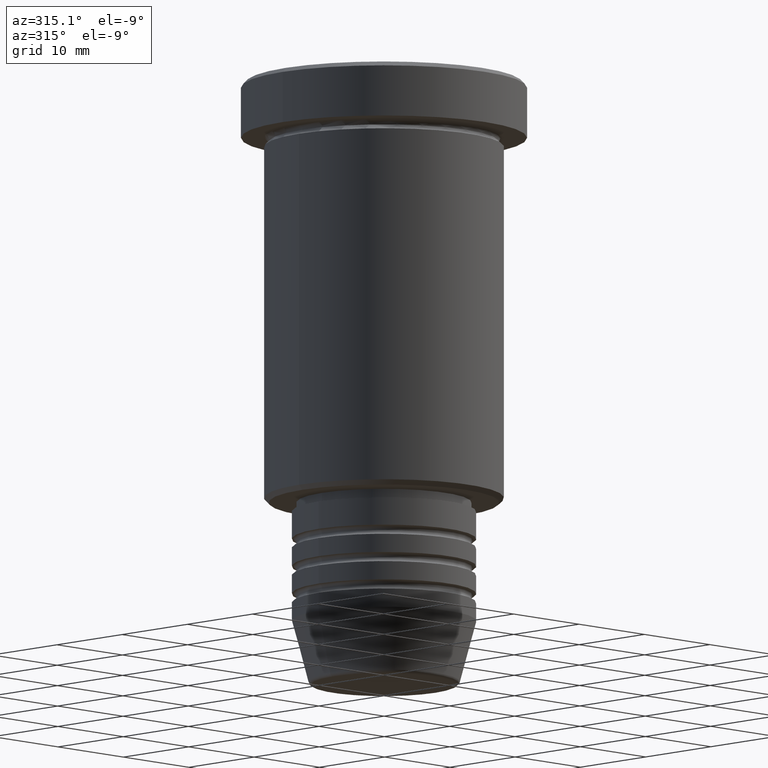
[diagram: clean part render]
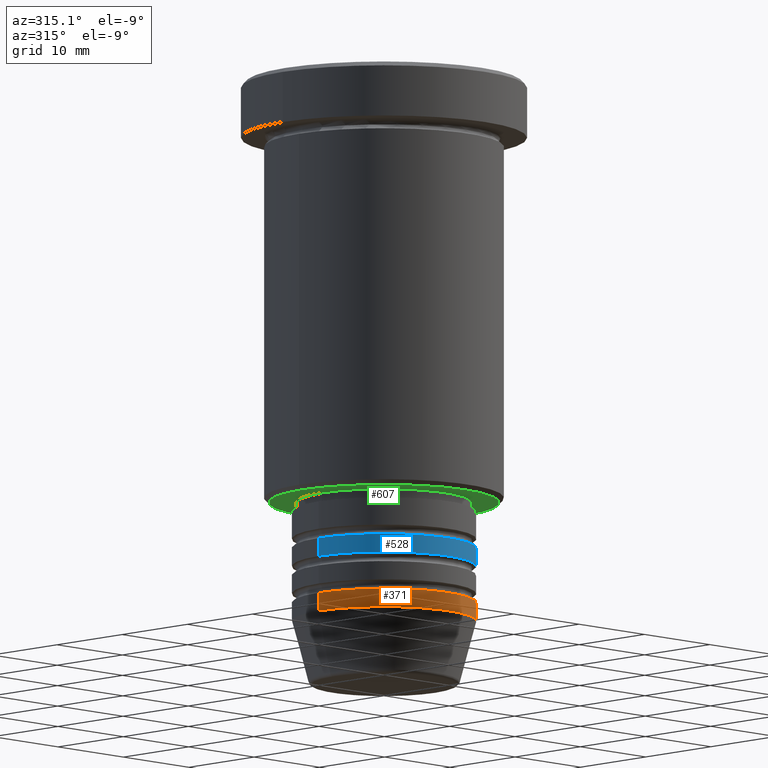
[diagram: same view with three faces highlighted in distinct colors, each labeled with its STEP entity id]
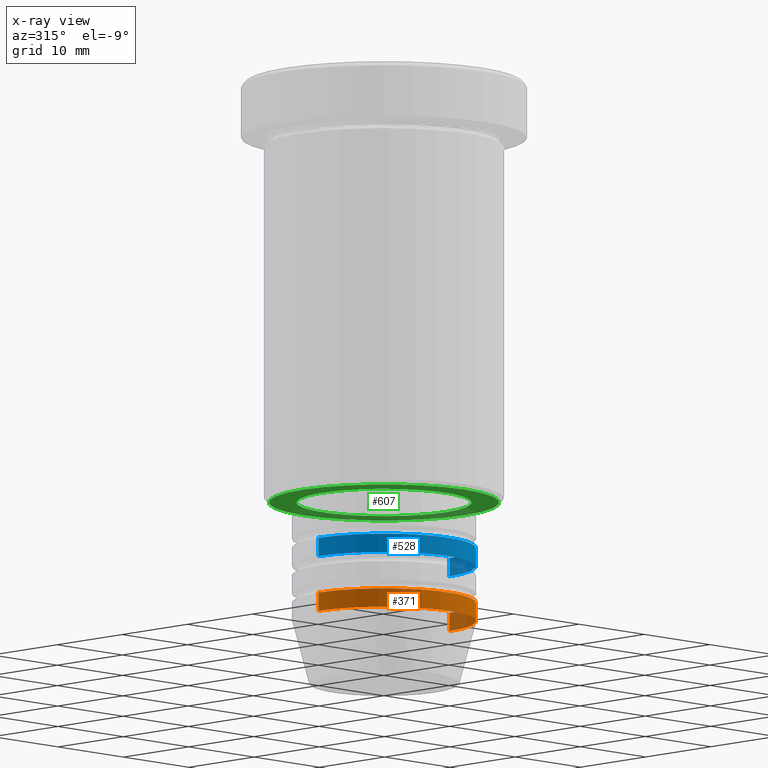
[diagram: x-ray of the same camera — body ghosted, the three highlighted faces saturated]
A machine part, auxiliary view with three faces highlighted in distinct colors.
The next image is the same camera in x-ray (body ghosted, the three faces saturated) — at least one of them is partly hidden behind the body in this view.
Their STEP definitions:

[orange] entity #371 — the highlighted cylindrical surface (partial cylindrical patch) has radius 10 mm, axis along (-0, -0, 1).
#41 = DIRECTION ( 'NONE',  ( -0.000000000000000000, -0.000000000000000000, 1.000000000000000000 ) ) ;
#90 = ORIENTED_EDGE ( 'NONE', *, *, #1169, .F. ) ;
#100 = CARTESIAN_POINT ( 'NONE',  ( 0.000000000000000000, 0.000000000000000000, -59.00000000000000000 ) ) ;
#131 = AXIS2_PLACEMENT_3D ( 'NONE', #100, #596, #972 ) ;
#164 = FACE_OUTER_BOUND ( 'NONE', #821, .T. ) ;
#166 = DIRECTION ( 'NONE',  ( -0.000000000000000000, -0.000000000000000000, 1.000000000000000000 ) ) ;
#171 = DIRECTION ( 'NONE',  ( 1.000000000000000000, 0.000000000000000000, 0.000000000000000000 ) ) ;
#193 = EDGE_CURVE ( 'NONE', #424, #260, #394, .T. ) ;
#229 = AXIS2_PLACEMENT_3D ( 'NONE', #261, #272, #655 ) ;
#260 = VERTEX_POINT ( 'NONE', #589 ) ;
#261 = CARTESIAN_POINT ( 'NONE',  ( 0.000000000000000000, 0.000000000000000000, 0.000000000000000000 ) ) ;
#272 = DIRECTION ( 'NONE',  ( -0.000000000000000000, -0.000000000000000000, 1.000000000000000000 ) ) ;
#281 = ORIENTED_EDGE ( 'NONE', *, *, #282, .T. ) ;
#282 = EDGE_CURVE ( 'NONE', #1044, #424, #692, .T. ) ;
#288 = CIRCLE ( 'NONE', #651, 10.00000000000000000 ) ;
#371 = ADVANCED_FACE ( 'NONE', ( #164 ), #823, .T. ) ;
#384 = CARTESIAN_POINT ( 'NONE',  ( -10.00000000000000000, 1.224646799147353256E-15, -56.99999999999999289 ) ) ;
#394 = LINE ( 'NONE', #1068, #523 ) ;
#416 = VERTEX_POINT ( 'NONE', #384 ) ;
#424 = VERTEX_POINT ( 'NONE', #1052 ) ;
#429 = DIRECTION ( 'NONE',  ( -0.000000000000000000, -0.000000000000000000, 1.000000000000000000 ) ) ;
#523 = VECTOR ( 'NONE', #41, 1000.000000000000000 ) ;
#524 = ORIENTED_EDGE ( 'NONE', *, *, #894, .F. ) ;
#542 = ORIENTED_EDGE ( 'NONE', *, *, #193, .T. ) ;
#545 = VECTOR ( 'NONE', #166, 1000.000000000000000 ) ;
#589 = CARTESIAN_POINT ( 'NONE',  ( 10.00000000000000000, 0.000000000000000000, -56.99999999999999289 ) ) ;
#596 = DIRECTION ( 'NONE',  ( -0.000000000000000000, -0.000000000000000000, 1.000000000000000000 ) ) ;
#651 = AXIS2_PLACEMENT_3D ( 'NONE', #1011, #429, #171 ) ;
#655 = DIRECTION ( 'NONE',  ( 1.000000000000000000, 0.000000000000000000, 0.000000000000000000 ) ) ;
#692 = CIRCLE ( 'NONE', #131, 10.00000000000000000 ) ;
#734 = LINE ( 'NONE', #1008, #545 ) ;
#807 = CARTESIAN_POINT ( 'NONE',  ( -10.00000000000000000, 1.224646799147353256E-15, -59.00000000000000000 ) ) ;
#821 = EDGE_LOOP ( 'NONE', ( #90, #281, #542, #524 ) ) ;
#823 = CYLINDRICAL_SURFACE ( 'NONE', #229, 10.00000000000000000 ) ;
#894 = EDGE_CURVE ( 'NONE', #416, #260, #288, .T. ) ;
#972 = DIRECTION ( 'NONE',  ( 1.000000000000000000, 0.000000000000000000, 0.000000000000000000 ) ) ;
#1008 = CARTESIAN_POINT ( 'NONE',  ( -10.00000000000000000, 1.224646799147353256E-15, 0.000000000000000000 ) ) ;
#1011 = CARTESIAN_POINT ( 'NONE',  ( 0.000000000000000000, 0.000000000000000000, -56.99999999999999289 ) ) ;
#1044 = VERTEX_POINT ( 'NONE', #807 ) ;
#1052 = CARTESIAN_POINT ( 'NONE',  ( 10.00000000000000000, 0.000000000000000000, -59.00000000000000000 ) ) ;
#1068 = CARTESIAN_POINT ( 'NONE',  ( 10.00000000000000000, 0.000000000000000000, 0.000000000000000000 ) ) ;
#1169 = EDGE_CURVE ( 'NONE', #1044, #416, #734, .T. ) ;

[blue] entity #528 — the highlighted cylindrical surface (partial cylindrical patch) has radius 10 mm, axis along (-0, -0, 1).
#43 = EDGE_CURVE ( 'NONE', #828, #447, #178, .T. ) ;
#76 = EDGE_LOOP ( 'NONE', ( #223, #244, #443, #806 ) ) ;
#110 = CIRCLE ( 'NONE', #1036, 10.00000000000000000 ) ;
#139 = CARTESIAN_POINT ( 'NONE',  ( 0.000000000000000000, 0.000000000000000000, 0.000000000000000000 ) ) ;
#178 = LINE ( 'NONE', #456, #988 ) ;
#223 = ORIENTED_EDGE ( 'NONE', *, *, #629, .F. ) ;
#244 = ORIENTED_EDGE ( 'NONE', *, *, #552, .T. ) ;
#295 = CARTESIAN_POINT ( 'NONE',  ( -10.00000000000000000, 1.224646799147353256E-15, 0.000000000000000000 ) ) ;
#364 = DIRECTION ( 'NONE',  ( 1.000000000000000000, 0.000000000000000000, 0.000000000000000000 ) ) ;
#380 = AXIS2_PLACEMENT_3D ( 'NONE', #381, #863, #364 ) ;
#381 = CARTESIAN_POINT ( 'NONE',  ( 0.000000000000000000, 0.000000000000000000, -50.99999999999997868 ) ) ;
#404 = DIRECTION ( 'NONE',  ( 1.000000000000000000, 0.000000000000000000, 0.000000000000000000 ) ) ;
#409 = VERTEX_POINT ( 'NONE', #756 ) ;
#422 = DIRECTION ( 'NONE',  ( 1.000000000000000000, 0.000000000000000000, 0.000000000000000000 ) ) ;
#443 = ORIENTED_EDGE ( 'NONE', *, *, #43, .T. ) ;
#447 = VERTEX_POINT ( 'NONE', #971 ) ;
#456 = CARTESIAN_POINT ( 'NONE',  ( 10.00000000000000000, 0.000000000000000000, 0.000000000000000000 ) ) ;
#528 = ADVANCED_FACE ( 'NONE', ( #622 ), #1070, .T. ) ;
#532 = VERTEX_POINT ( 'NONE', #808 ) ;
#549 = AXIS2_PLACEMENT_3D ( 'NONE', #139, #613, #422 ) ;
#552 = EDGE_CURVE ( 'NONE', #409, #828, #110, .T. ) ;
#613 = DIRECTION ( 'NONE',  ( -0.000000000000000000, -0.000000000000000000, 1.000000000000000000 ) ) ;
#622 = FACE_OUTER_BOUND ( 'NONE', #76, .T. ) ;
#629 = EDGE_CURVE ( 'NONE', #409, #532, #875, .T. ) ;
#674 = DIRECTION ( 'NONE',  ( -0.000000000000000000, -0.000000000000000000, 1.000000000000000000 ) ) ;
#744 = CIRCLE ( 'NONE', #380, 10.00000000000000000 ) ;
#752 = CARTESIAN_POINT ( 'NONE',  ( 10.00000000000000000, 0.000000000000000000, -52.99999999999997868 ) ) ;
#756 = CARTESIAN_POINT ( 'NONE',  ( -10.00000000000000000, 1.224646799147353256E-15, -52.99999999999997868 ) ) ;
#771 = EDGE_CURVE ( 'NONE', #532, #447, #744, .T. ) ;
#798 = CARTESIAN_POINT ( 'NONE',  ( 0.000000000000000000, 0.000000000000000000, -52.99999999999997868 ) ) ;
#806 = ORIENTED_EDGE ( 'NONE', *, *, #771, .F. ) ;
#808 = CARTESIAN_POINT ( 'NONE',  ( -10.00000000000000000, 1.224646799147353256E-15, -50.99999999999997868 ) ) ;
#828 = VERTEX_POINT ( 'NONE', #752 ) ;
#849 = DIRECTION ( 'NONE',  ( -0.000000000000000000, -0.000000000000000000, 1.000000000000000000 ) ) ;
#863 = DIRECTION ( 'NONE',  ( -0.000000000000000000, -0.000000000000000000, 1.000000000000000000 ) ) ;
#875 = LINE ( 'NONE', #295, #909 ) ;
#890 = DIRECTION ( 'NONE',  ( -0.000000000000000000, -0.000000000000000000, 1.000000000000000000 ) ) ;
#909 = VECTOR ( 'NONE', #674, 1000.000000000000000 ) ;
#971 = CARTESIAN_POINT ( 'NONE',  ( 10.00000000000000000, 0.000000000000000000, -50.99999999999997868 ) ) ;
#988 = VECTOR ( 'NONE', #849, 1000.000000000000000 ) ;
#1036 = AXIS2_PLACEMENT_3D ( 'NONE', #798, #890, #404 ) ;
#1070 = CYLINDRICAL_SURFACE ( 'NONE', #549, 10.00000000000000000 ) ;

[green] entity #607 — the highlighted planar face has unit normal (0, 0, -1).
#12 = ORIENTED_EDGE ( 'NONE', *, *, #519, .T. ) ;
#42 = DIRECTION ( 'NONE',  ( -0.000000000000000000, -0.000000000000000000, 1.000000000000000000 ) ) ;
#66 = VERTEX_POINT ( 'NONE', #755 ) ;
#80 = ORIENTED_EDGE ( 'NONE', *, *, #319, .T. ) ;
#84 = DIRECTION ( 'NONE',  ( -1.000000000000000000, 0.000000000000000000, -0.000000000000000000 ) ) ;
#89 = AXIS2_PLACEMENT_3D ( 'NONE', #97, #1045, #220 ) ;
#97 = CARTESIAN_POINT ( 'NONE',  ( 0.000000000000000000, 0.000000000000000000, -46.00000000000000000 ) ) ;
#126 = CARTESIAN_POINT ( 'NONE',  ( 12.49999999999999112, 0.000000000000000000, -46.00000000000000000 ) ) ;
#176 = DIRECTION ( 'NONE',  ( -0.000000000000000000, -0.000000000000000000, 1.000000000000000000 ) ) ;
#220 = DIRECTION ( 'NONE',  ( -1.000000000000000000, 0.000000000000000000, 0.000000000000000000 ) ) ;
#250 = ORIENTED_EDGE ( 'NONE', *, *, #591, .T. ) ;
#259 = FACE_BOUND ( 'NONE', #1006, .T. ) ;
#286 = AXIS2_PLACEMENT_3D ( 'NONE', #351, #576, #84 ) ;
#317 = VERTEX_POINT ( 'NONE', #782 ) ;
#319 = EDGE_CURVE ( 'NONE', #317, #536, #866, .T. ) ;
#351 = CARTESIAN_POINT ( 'NONE',  ( 0.000000000000000000, 13.00000000000000000, -46.00000000000000000 ) ) ;
#369 = CARTESIAN_POINT ( 'NONE',  ( 0.000000000000000000, 0.000000000000000000, -46.00000000000000000 ) ) ;
#400 = CIRCLE ( 'NONE', #670, 9.500000000000000000 ) ;
#430 = EDGE_LOOP ( 'NONE', ( #647, #80 ) ) ;
#439 = DIRECTION ( 'NONE',  ( 1.000000000000000000, 0.000000000000000000, 0.000000000000000000 ) ) ;
#459 = CIRCLE ( 'NONE', #89, 12.49999999999999112 ) ;
#497 = CARTESIAN_POINT ( 'NONE',  ( 9.500000000000000000, 0.000000000000000000, -46.00000000000000000 ) ) ;
#506 = CIRCLE ( 'NONE', #709, 9.500000000000000000 ) ;
#511 = VERTEX_POINT ( 'NONE', #497 ) ;
#519 = EDGE_CURVE ( 'NONE', #511, #66, #506, .T. ) ;
#530 = DIRECTION ( 'NONE',  ( 1.000000000000000000, 0.000000000000000000, 0.000000000000000000 ) ) ;
#536 = VERTEX_POINT ( 'NONE', #126 ) ;
#555 = PLANE ( 'NONE',  #286 ) ;
#576 = DIRECTION ( 'NONE',  ( 0.000000000000000000, 0.000000000000000000, -1.000000000000000000 ) ) ;
#591 = EDGE_CURVE ( 'NONE', #66, #511, #400, .T. ) ;
#607 = ADVANCED_FACE ( 'NONE', ( #731, #259 ), #555, .T. ) ;
#647 = ORIENTED_EDGE ( 'NONE', *, *, #991, .T. ) ;
#670 = AXIS2_PLACEMENT_3D ( 'NONE', #917, #176, #439 ) ;
#708 = DIRECTION ( 'NONE',  ( 0.000000000000000000, 0.000000000000000000, -1.000000000000000000 ) ) ;
#709 = AXIS2_PLACEMENT_3D ( 'NONE', #369, #42, #530 ) ;
#720 = AXIS2_PLACEMENT_3D ( 'NONE', #1047, #708, #803 ) ;
#731 = FACE_OUTER_BOUND ( 'NONE', #430, .T. ) ;
#755 = CARTESIAN_POINT ( 'NONE',  ( -9.500000000000000000, 1.163414459189985485E-15, -46.00000000000000000 ) ) ;
#782 = CARTESIAN_POINT ( 'NONE',  ( -12.49999999999999112, 1.561424668912874519E-15, -46.00000000000000000 ) ) ;
#803 = DIRECTION ( 'NONE',  ( -1.000000000000000000, 0.000000000000000000, 0.000000000000000000 ) ) ;
#866 = CIRCLE ( 'NONE', #720, 12.49999999999999112 ) ;
#917 = CARTESIAN_POINT ( 'NONE',  ( 0.000000000000000000, 0.000000000000000000, -46.00000000000000000 ) ) ;
#991 = EDGE_CURVE ( 'NONE', #536, #317, #459, .T. ) ;
#1006 = EDGE_LOOP ( 'NONE', ( #12, #250 ) ) ;
#1045 = DIRECTION ( 'NONE',  ( 0.000000000000000000, 0.000000000000000000, -1.000000000000000000 ) ) ;
#1047 = CARTESIAN_POINT ( 'NONE',  ( 0.000000000000000000, 0.000000000000000000, -46.00000000000000000 ) ) ;